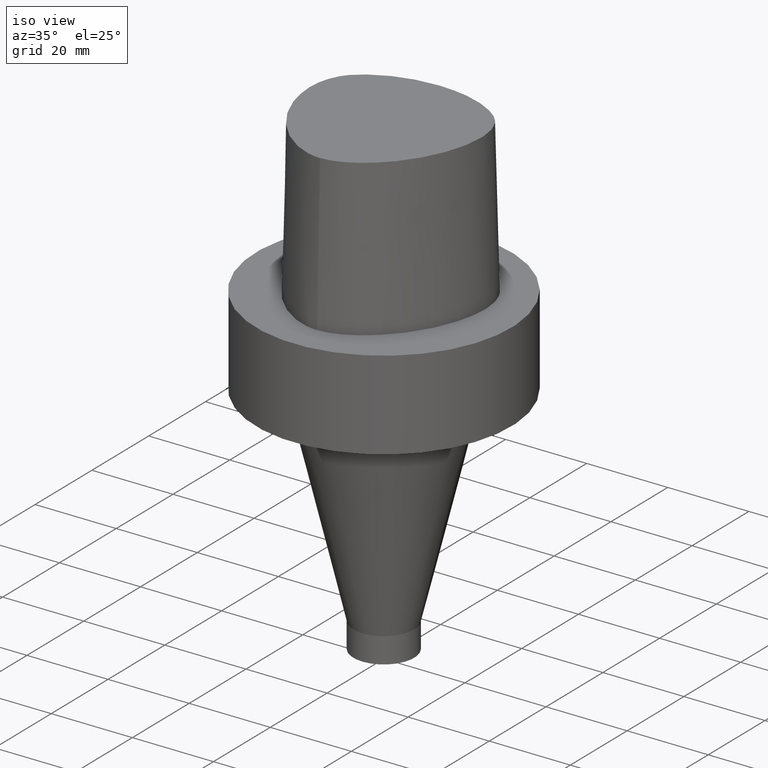
[diagram: clean part render]
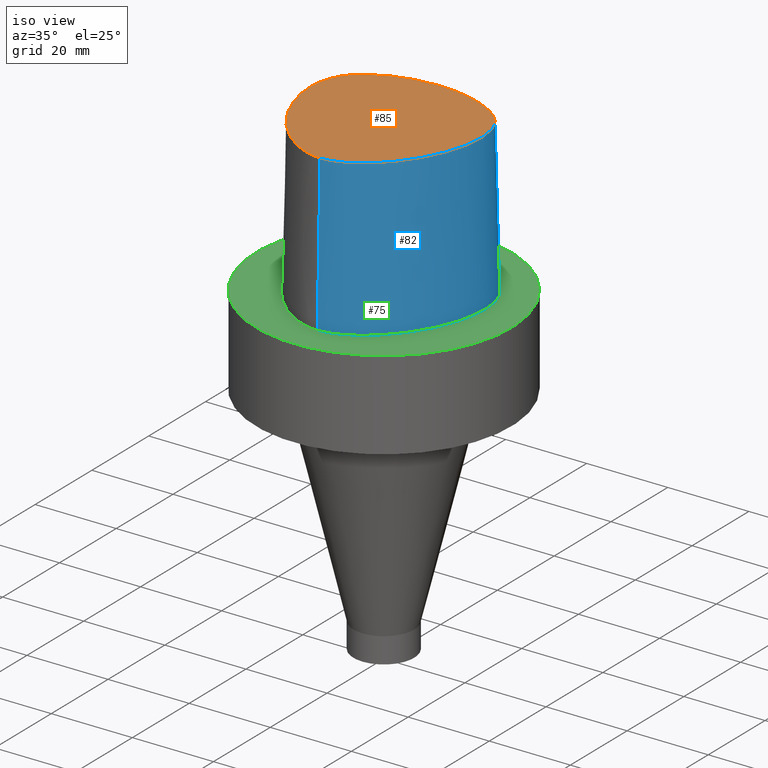
[diagram: same view with three faces highlighted in distinct colors, each labeled with its STEP entity id]
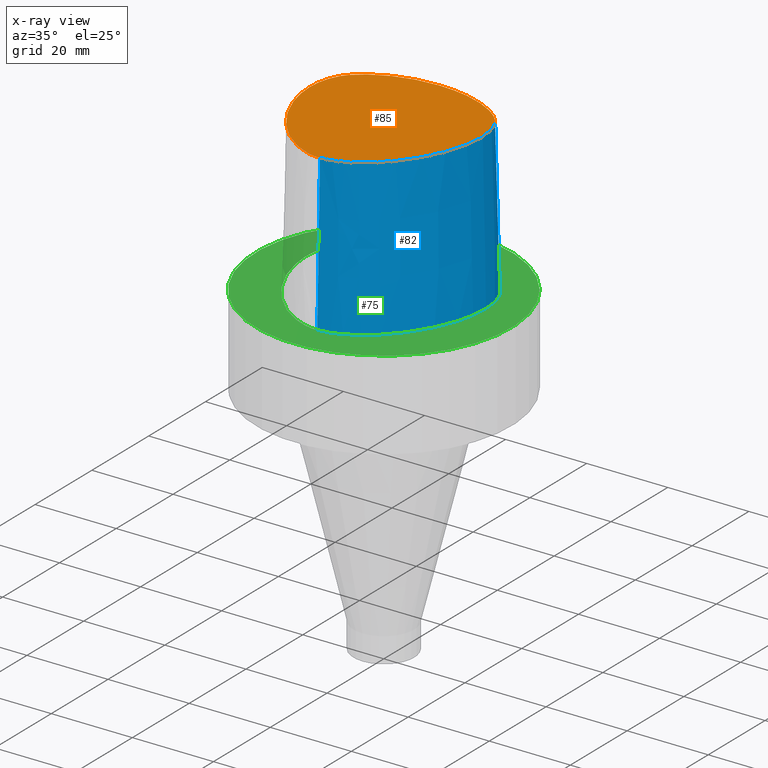
[diagram: x-ray of the same camera — body ghosted, the three highlighted faces saturated]
A machine part, iso view with three faces highlighted in distinct colors.
The next image is the same camera in x-ray (body ghosted, the three faces saturated) — at least one of them is partly hidden behind the body in this view.
Their STEP definitions:

[orange] entity #85 — the highlighted planar face has unit normal (0, 0, 1).
#85=ADVANCED_FACE('',(#113),#114,.T.);
#113=FACE_OUTER_BOUND('',#279,.T.);
#114=PLANE('',#280);
#279=EDGE_LOOP('',(#331,#332));
#280=AXIS2_PLACEMENT_3D('',#333,#334,#335);
#331=ORIENTED_EDGE('',*,*,#348,.T.);
#332=ORIENTED_EDGE('',*,*,#346,.T.);
#333=CARTESIAN_POINT('',(0.008647668684817,1.77491953635526,38.0));
#334=DIRECTION('',(0.0,0.0,1.0));
#335=DIRECTION('',(1.0,-0.0,0.0));
#346=EDGE_CURVE('',#370,#368,#371,.T.);
#348=EDGE_CURVE('',#368,#370,#373,.T.);
#368=VERTEX_POINT('',#453);
#370=VERTEX_POINT('',#456);
#371=B_SPLINE_CURVE_WITH_KNOTS('',3,(#457,#458,#459,#460,#461,#462,#463,#464,#465,#466,#467,#468,#469,#470,#471,#472),.UNSPECIFIED.,.F.,.F.,(4,1,1,1,1,1,1,1,1,1,1,1,1,4),(6.61513393087476,6.99917207152274,7.48193246986995,7.96289324787093,8.45540287038584,9.10291653679981,9.67129810936083,10.1618749681153,10.6358867802489,11.1080734988593,11.6043706019633,12.09451993853,12.6985979284494,13.2302678617486),.UNSPECIFIED.);
#373=B_SPLINE_CURVE_WITH_KNOTS('',3,(#475,#476,#477,#478,#479,#480,#481,#482,#483,#484,#485,#486,#487,#488,#489,#490),.UNSPECIFIED.,.F.,.F.,(4,1,1,1,1,1,1,1,1,1,1,1,1,4),(0.0,0.447924670568964,0.9388024242536,1.50591409090711,2.07314340012323,2.72424957442464,3.2253501842849,3.80982102049476,4.34867996267067,4.85900173381144,5.37972031856977,6.03459825488646,6.61113557741484,6.61513393087395),.UNSPECIFIED.);
#453=CARTESIAN_POINT('',(-0.001218547003662,19.7276821925089,38.0));
#456=CARTESIAN_POINT('',(0.038736923393866,-22.5191997536361,38.0));
#457=CARTESIAN_POINT('',(0.038736923394311,-22.519199753636,38.0));
#458=CARTESIAN_POINT('',(1.31742058183662,-22.512662269405,38.0));
#459=CARTESIAN_POINT('',(4.2093773447498,-21.9116226439989,38.0));
#460=CARTESIAN_POINT('',(8.20895504542113,-19.7798683845067,38.0));
#461=CARTESIAN_POINT('',(11.9784633234593,-16.681663904162,38.0));
#462=CARTESIAN_POINT('',(15.5308821579362,-12.5807487594113,38.0));
#463=CARTESIAN_POINT('',(18.4566248438667,-7.64932246015528,38.0));
#464=CARTESIAN_POINT('',(20.4036090752029,-2.27012499825289,38.0));
#465=CARTESIAN_POINT('',(21.2357187429189,2.79891401173156,38.0));
#466=CARTESIAN_POINT('',(21.0811206267748,7.62543090736657,38.0));
#467=CARTESIAN_POINT('',(19.3383577336563,12.2772250726194,38.0));
#468=CARTESIAN_POINT('',(15.5796322014404,15.5799672120682,38.0));
#469=CARTESIAN_POINT('',(10.8392956074438,17.9834601687347,38.0));
#470=CARTESIAN_POINT('',(5.56068045850571,19.4586143858472,38.0));
#471=CARTESIAN_POINT('',(1.77223893711014,19.6418877095654,38.0));
#472=CARTESIAN_POINT('',(-0.001218367817519,19.7276822012873,38.0));
#475=CARTESIAN_POINT('',(-0.001218547003662,19.7276821925089,38.0));
#476=CARTESIAN_POINT('',(-1.49408492138443,19.6585333605309,38.0));
#477=CARTESIAN_POINT('',(-4.62297391420352,19.513604770166,38.0));
#478=CARTESIAN_POINT('',(-9.56160616752212,18.4291575730197,38.0));
#479=CARTESIAN_POINT('',(-14.5427684976927,16.2697452580488,38.0));
#480=CARTESIAN_POINT('',(-19.4315563551602,12.5302108980807,38.0));
#481=CARTESIAN_POINT('',(-21.306358833612,6.76352894547076,38.0));
#482=CARTESIAN_POINT('',(-21.0724946936277,0.957075236984038,38.0));
#483=CARTESIAN_POINT('',(-19.7876470880144,-4.34628503581652,38.0));
#484=CARTESIAN_POINT('',(-17.5396999600095,-9.33314444653089,38.0));
#485=CARTESIAN_POINT('',(-14.645447733857,-13.7185760345629,38.0));
#486=CARTESIAN_POINT('',(-10.7996726536643,-17.856257282137,38.0));
#487=CARTESIAN_POINT('',(-6.00479510196376,-21.2687382067675,38.0));
#488=CARTESIAN_POINT('',(-1.90747171908525,-22.5250621415864,38.0));
#489=CARTESIAN_POINT('',(0.025424107066464,-22.5192678176378,38.0));
#490=CARTESIAN_POINT('',(0.038736923394311,-22.519199753636,38.0));

[blue] entity #82 — the highlighted face is a freeform B-spline surface patch.
#82=ADVANCED_FACE('',(#107),#108,.T.);
#107=FACE_OUTER_BOUND('',#135,.T.);
#108=B_SPLINE_SURFACE_WITH_KNOTS('',3,3,((#136,#137,#138,#139),(#140,#141,#142,#143),(#144,#145,#146,#147),(#148,#149,#150,#151),(#152,#153,#154,#155),(#156,#157,#158,#159),(#160,#161,#162,#163),(#164,#165,#166,#167),(#168,#169,#170,#171),(#172,#173,#174,#175),(#176,#177,#178,#179),(#180,#181,#182,#183),(#184,#185,#186,#187),(#188,#189,#190,#191),(#192,#193,#194,#195),(#196,#197,#198,#199),(#200,#201,#202,#203)),.UNSPECIFIED.,.F.,.F.,.F.,(4,1,1,1,1,1,1,1,1,1,1,1,1,1,4),(4,4),(-13.2302678617486,-12.816821991069,-12.4033761203893,-11.9899302497097,-11.57648437903,-11.1630385083504,-10.9563155730106,-10.7495926376707,-10.3361467669911,-9.92270089631145,-9.09580915495216,-8.26891741359287,-7.44202567223358,-7.02857980155394,-6.6151339308743),(-3.8,0.0),.UNSPECIFIED.);
#135=EDGE_LOOP('',(#317,#318,#319,#320));
#136=CARTESIAN_POINT('',(-0.001218367817519,19.7276822012873,38.0));
#137=CARTESIAN_POINT('',(0.014082083248157,20.0439577123075,25.3333333333066));
#138=CARTESIAN_POINT('',(0.029382534313671,20.3602332232908,12.6666666666934));
#139=CARTESIAN_POINT('',(0.044682985379347,20.6765087343109,0.0));
#140=CARTESIAN_POINT('',(1.37788651195108,19.6609652834875,38.0));
#141=CARTESIAN_POINT('',(1.3931885827258,19.9772407169847,25.3333333333066));
#142=CARTESIAN_POINT('',(1.40849065356095,20.2935162254648,12.6666666666934));
#143=CARTESIAN_POINT('',(1.42379272427753,20.6097915814392,0.0));
#144=CARTESIAN_POINT('',(4.135446440878,19.5347778787784,38.0));
#145=CARTESIAN_POINT('',(4.16466278851883,19.8511031866125,25.3333333333066));
#146=CARTESIAN_POINT('',(4.1938791526746,20.1674284644204,12.6666666666934));
#147=CARTESIAN_POINT('',(4.2230955003445,20.4837538303966,0.0));
#148=CARTESIAN_POINT('',(8.213607363795,18.7706026638736,38.0));
#149=CARTESIAN_POINT('',(8.29980745008421,19.0767495109635,25.3333333333066));
#150=CARTESIAN_POINT('',(8.38600751285747,19.3828964329996,12.6666666666934));
#151=CARTESIAN_POINT('',(8.47220762821777,19.6890432607088,0.0));
#152=CARTESIAN_POINT('',(12.1316338645671,17.3698624840857,38.0));
#153=CARTESIAN_POINT('',(12.2591308270381,17.6610739397708,25.3333333333066));
#154=CARTESIAN_POINT('',(12.3866278083543,17.9522853923553,12.6666666666934));
#155=CARTESIAN_POINT('',(12.5141247708253,18.2434968480404,0.0));
#156=CARTESIAN_POINT('',(15.7706546153679,15.3789501349612,38.0));
#157=CARTESIAN_POINT('',(15.9483905900895,15.6437731794811,25.3333333333066));
#158=CARTESIAN_POINT('',(16.1261265513272,15.9085961736944,12.6666666666934));
#159=CARTESIAN_POINT('',(16.3038624872874,16.1734192182143,0.0));
#160=CARTESIAN_POINT('',(18.4265894256284,13.0570022172893,38.0));
#161=CARTESIAN_POINT('',(18.6659567517146,13.2725589420689,25.3333333333066));
#162=CARTESIAN_POINT('',(18.9053240921419,13.4881156488541,12.6666666666934));
#163=CARTESIAN_POINT('',(19.1446913988473,13.7036723639434,0.0));
#164=CARTESIAN_POINT('',(19.8679958653038,10.6923771981998,38.0));
#165=CARTESIAN_POINT('',(20.1559937048299,10.8287388264873,25.3333333333066));
#166=CARTESIAN_POINT('',(20.4439915656177,10.965100461641,12.6666666666934));
#167=CARTESIAN_POINT('',(20.7319894342149,11.1014620996188,0.0));
#168=CARTESIAN_POINT('',(20.8470867582337,8.07149548576131,38.0));
#169=CARTESIAN_POINT('',(21.1591164072431,8.14132775555392,25.3333333333066));
#170=CARTESIAN_POINT('',(21.4711459821861,8.21116003697855,12.6666666666934));
#171=CARTESIAN_POINT('',(21.7831756505763,8.28099229708081,0.0));
#172=CARTESIAN_POINT('',(21.2693244256982,4.61157245650171,38.0));
#173=CARTESIAN_POINT('',(21.5881576801997,4.6105997689982,25.3333333333066));
#174=CARTESIAN_POINT('',(21.9069908544037,4.60962709346857,12.6666666666934));
#175=CARTESIAN_POINT('',(22.2258240701438,4.60865440596506,0.0));
#176=CARTESIAN_POINT('',(20.8071610855575,-0.912828649855193,38.0));
#177=CARTESIAN_POINT('',(21.119311671178,-0.979640884839481,25.3333333333066));
#178=CARTESIAN_POINT('',(21.4314624224461,-1.04645306732201,12.6666666666934));
#179=CARTESIAN_POINT('',(21.7436130080666,-1.11326526354485,0.0));
#180=CARTESIAN_POINT('',(18.6841935581315,-7.54428794252837,38.0));
#181=CARTESIAN_POINT('',(18.9734452551861,-7.6809665891091,25.3333333333066));
#182=CARTESIAN_POINT('',(19.2626970689956,-7.81764505382656,12.6666666666934));
#183=CARTESIAN_POINT('',(19.5519487660502,-7.95432366164584,0.0));
#184=CARTESIAN_POINT('',(14.2175552814,-14.5971504342323,38.0));
#185=CARTESIAN_POINT('',(14.4641757465198,-14.8010930946929,25.3333333333066));
#186=CARTESIAN_POINT('',(14.710796247264,-15.0050359737917,12.6666666666934));
#187=CARTESIAN_POINT('',(14.9574167123838,-15.2089785567293,0.0));
#188=CARTESIAN_POINT('',(9.0844808732933,-19.3179298129689,38.0));
#189=CARTESIAN_POINT('',(9.27912152349017,-19.572866915557,25.3333333333066));
#190=CARTESIAN_POINT('',(9.47376218971294,-19.827804295621,12.6666666666934));
#191=CARTESIAN_POINT('',(9.66840283021945,-20.0827414369705,0.0));
#192=CARTESIAN_POINT('',(4.17112919194182,-21.8987568152736,38.0));
#193=CARTESIAN_POINT('',(4.28618163483998,-22.1973837173649,25.3333333333066));
#194=CARTESIAN_POINT('',(4.40123406239433,-22.4960105163661,12.6666666666934));
#195=CARTESIAN_POINT('',(4.51628650521788,-22.7946374572188,0.0));
#196=CARTESIAN_POINT('',(1.41533654381097,-22.5120888467812,38.0));
#197=CARTESIAN_POINT('',(1.46311520162011,-22.8284916374445,25.3333333333066));
#198=CARTESIAN_POINT('',(1.51089385942236,-23.144894486341,12.6666666666934));
#199=CARTESIAN_POINT('',(1.55867251738073,-23.4612972770043,0.0));
#200=CARTESIAN_POINT('',(0.038736923393866,-22.5191997536361,38.0));
#201=CARTESIAN_POINT('',(0.04035580478973,-22.8358410047159,25.3333333333066));
#202=CARTESIAN_POINT('',(0.041974686185626,-23.1524822558133,12.6666666666934));
#203=CARTESIAN_POINT('',(0.04359356758149,-23.4691235068931,0.0));
#317=ORIENTED_EDGE('',*,*,#337,.T.);
#318=ORIENTED_EDGE('',*,*,#345,.F.);
#319=ORIENTED_EDGE('',*,*,#346,.F.);
#320=ORIENTED_EDGE('',*,*,#347,.T.);
#337=EDGE_CURVE('',#352,#353,#354,.T.);
#345=EDGE_CURVE('',#368,#353,#369,.T.);
#346=EDGE_CURVE('',#370,#368,#371,.T.);
#347=EDGE_CURVE('',#370,#352,#372,.T.);
#352=VERTEX_POINT('',#377);
#353=VERTEX_POINT('',#378);
#354=B_SPLINE_CURVE_WITH_KNOTS('',3,(#379,#380,#381,#382,#383,#384,#385,#386,#387,#388,#389,#390,#391,#392,#393,#394,#395,#396,#397,#398,#399,#400,#401,#402,#403,#404,#405,#406,#407,#408,#409,#410),.UNSPECIFIED.,.F.,.F.,(4,2,2,2,2,2,2,2,2,2,2,2,2,2,2,4),(6.6151339308743,6.90353802293409,7.19194211499389,7.48034620705369,7.76875029911348,8.3273781966476,8.88600609418171,10.0632582234986,10.5220146921826,10.9807711608666,11.2101493952086,11.4395276295506,11.8982840982346,12.4281394376607,12.8292036497046,13.2302678617486),.UNSPECIFIED.);
#368=VERTEX_POINT('',#453);
#369=LINE('',#454,#455);
#370=VERTEX_POINT('',#456);
#371=B_SPLINE_CURVE_WITH_KNOTS('',3,(#457,#458,#459,#460,#461,#462,#463,#464,#465,#466,#467,#468,#469,#470,#471,#472),.UNSPECIFIED.,.F.,.F.,(4,1,1,1,1,1,1,1,1,1,1,1,1,4),(6.61513393087476,6.99917207152274,7.48193246986995,7.96289324787093,8.45540287038584,9.10291653679981,9.67129810936083,10.1618749681153,10.6358867802489,11.1080734988593,11.6043706019633,12.09451993853,12.6985979284494,13.2302678617486),.UNSPECIFIED.);
#372=LINE('',#473,#474);
#377=CARTESIAN_POINT('',(0.04359356758149,-23.4691235068931,0.0));
#378=CARTESIAN_POINT('',(0.044682985379347,20.6765087343109,0.0));
#379=CARTESIAN_POINT('',(0.04359356758149,-23.4691235068931,0.0));
#380=CARTESIAN_POINT('',(1.1004598519742,-23.4637201011149,7.105427E-015));
#381=CARTESIAN_POINT('',(2.14400887535539,-23.2973076591387,0.0));
#382=CARTESIAN_POINT('',(4.1424681795584,-22.7592077909815,0.0));
#383=CARTESIAN_POINT('',(5.09815205870591,-22.390397570418,-7.105427E-015));
#384=CARTESIAN_POINT('',(6.9351099930747,-21.5078613163183,-7.105427E-015));
#385=CARTESIAN_POINT('',(7.80351845767777,-20.9996631554928,-7.105427E-015));
#386=CARTESIAN_POINT('',(9.46943987011575,-19.8886274331692,-7.105427E-015));
#387=CARTESIAN_POINT('',(10.2666299015956,-19.2853057570752,-7.105427E-015));
#388=CARTESIAN_POINT('',(12.5026318141948,-17.3963733278614,2.131628E-014));
#389=CARTESIAN_POINT('',(13.8422909676271,-16.0046937991299,0.0));
#390=CARTESIAN_POINT('',(16.2509822407142,-13.0101546997628,1.421085E-014));
#391=CARTESIAN_POINT('',(17.3206577927156,-11.4078127381174,-7.105427E-015));
#392=CARTESIAN_POINT('',(20.1948648257688,-6.17855164445771,-7.105427E-015));
#393=CARTESIAN_POINT('',(21.5264998810762,-2.27044916431131,-7.105427E-015));
#394=CARTESIAN_POINT('',(22.1083077940609,3.36511341978747,-7.105427E-015));
#395=CARTESIAN_POINT('',(22.1437891560423,4.95691742010578,-7.105427E-015));
#396=CARTESIAN_POINT('',(21.7438554055,8.21486313336421,-7.105427E-015));
#397=CARTESIAN_POINT('',(21.2813238062713,9.87761881981491,0.0));
#398=CARTESIAN_POINT('',(20.1794569882097,12.0317423962685,0.0));
#399=CARTESIAN_POINT('',(19.7024138468366,12.7593191234763,-7.105427E-015));
#400=CARTESIAN_POINT('',(18.6262164065722,14.0443851003557,-7.105427E-015));
#401=CARTESIAN_POINT('',(18.0388107856225,14.6116679410871,0.0));
#402=CARTESIAN_POINT('',(16.1284788612342,16.197117807416,7.105427E-015));
#403=CARTESIAN_POINT('',(14.7618818860482,17.03003182658,0.0));
#404=CARTESIAN_POINT('',(11.6856166176821,18.5458506425855,0.0));
#405=CARTESIAN_POINT('',(9.96274972961394,19.1800623227596,0.0));
#406=CARTESIAN_POINT('',(6.84723700488339,20.0025241142556,0.0));
#407=CARTESIAN_POINT('',(5.4719505740624,20.2496312304465,0.0));
#408=CARTESIAN_POINT('',(2.7387517037224,20.5467807312008,0.0));
#409=CARTESIAN_POINT('',(1.38248716057628,20.6117898211938,0.0));
#410=CARTESIAN_POINT('',(0.044682985379347,20.6765087343109,0.0));
#453=CARTESIAN_POINT('',(-0.001218547003662,19.7276821925089,38.0));
#454=CARTESIAN_POINT('',(-0.001218547003662,19.7276821925089,38.0));
#455=VECTOR('',#514,38.0118715503078);
#456=CARTESIAN_POINT('',(0.038736923393866,-22.5191997536361,38.0));
#457=CARTESIAN_POINT('',(0.038736923394311,-22.519199753636,38.0));
#458=CARTESIAN_POINT('',(1.31742058183662,-22.512662269405,38.0));
#459=CARTESIAN_POINT('',(4.2093773447498,-21.9116226439989,38.0));
#460=CARTESIAN_POINT('',(8.20895504542113,-19.7798683845067,38.0));
#461=CARTESIAN_POINT('',(11.9784633234593,-16.681663904162,38.0));
#462=CARTESIAN_POINT('',(15.5308821579362,-12.5807487594113,38.0));
#463=CARTESIAN_POINT('',(18.4566248438667,-7.64932246015528,38.0));
#464=CARTESIAN_POINT('',(20.4036090752029,-2.27012499825289,38.0));
#465=CARTESIAN_POINT('',(21.2357187429189,2.79891401173156,38.0));
#466=CARTESIAN_POINT('',(21.0811206267748,7.62543090736657,38.0));
#467=CARTESIAN_POINT('',(19.3383577336563,12.2772250726194,38.0));
#468=CARTESIAN_POINT('',(15.5796322014404,15.5799672120682,38.0));
#469=CARTESIAN_POINT('',(10.8392956074438,17.9834601687347,38.0));
#470=CARTESIAN_POINT('',(5.56068045850571,19.4586143858472,38.0));
#471=CARTESIAN_POINT('',(1.77223893711014,19.6418877095654,38.0));
#472=CARTESIAN_POINT('',(-0.001218367817519,19.7276822012873,38.0));
#473=CARTESIAN_POINT('',(0.038736923393866,-22.5191997536361,38.0));
#474=VECTOR('',#515,38.0118715498723);
#514=DIRECTION('',(0.001207557810519,0.024961321374199,-0.999687688350411));
#515=DIRECTION('',(0.000127766510556,-0.024990186342461,-0.999687688361864));

[green] entity #75 — the highlighted planar face has unit normal (-0, -0, 1).
#75=ADVANCED_FACE('',(#87,#88),#89,.T.);
#87=FACE_OUTER_BOUND('',#115,.T.);
#88=FACE_BOUND('',#116,.T.);
#89=PLANE('',#117);
#115=EDGE_LOOP('',(#281));
#116=EDGE_LOOP('',(#282,#283,#284));
#117=AXIS2_PLACEMENT_3D('',#285,#286,#287);
#281=ORIENTED_EDGE('',*,*,#336,.F.);
#282=ORIENTED_EDGE('',*,*,#337,.F.);
#283=ORIENTED_EDGE('',*,*,#338,.F.);
#284=ORIENTED_EDGE('',*,*,#339,.F.);
#285=CARTESIAN_POINT('',(-1.94087516075568E-031,15.74625,1.9283594661074E-015));
#286=DIRECTION('',(-6.12323399573677E-017,-1.22464679914735E-016,1.0));
#287=DIRECTION('',(1.23259516440783E-032,-1.0,-1.22464679914735E-016));
#336=EDGE_CURVE('',#350,#350,#351,.T.);
#337=EDGE_CURVE('',#352,#353,#354,.T.);
#338=EDGE_CURVE('',#355,#352,#356,.T.);
#339=EDGE_CURVE('',#353,#355,#357,.T.);
#350=VERTEX_POINT('',#375);
#351=CIRCLE('',#376,31.4925);
#352=VERTEX_POINT('',#377);
#353=VERTEX_POINT('',#378);
#354=B_SPLINE_CURVE_WITH_KNOTS('',3,(#379,#380,#381,#382,#383,#384,#385,#386,#387,#388,#389,#390,#391,#392,#393,#394,#395,#396,#397,#398,#399,#400,#401,#402,#403,#404,#405,#406,#407,#408,#409,#410),.UNSPECIFIED.,.F.,.F.,(4,2,2,2,2,2,2,2,2,2,2,2,2,2,2,4),(6.6151339308743,6.90353802293409,7.19194211499389,7.48034620705369,7.76875029911348,8.3273781966476,8.88600609418171,10.0632582234986,10.5220146921826,10.9807711608666,11.2101493952086,11.4395276295506,11.8982840982346,12.4281394376607,12.8292036497046,13.2302678617486),.UNSPECIFIED.);
#355=VERTEX_POINT('',#411);
#356=B_SPLINE_CURVE_WITH_KNOTS('',3,(#412,#413,#414,#415,#416,#417,#418,#419,#420,#421,#422,#423,#424,#425,#426,#427,#428,#429,#430,#431,#432,#433,#434,#435,#436,#437,#438,#439,#440,#441),.UNSPECIFIED.,.F.,.F.,(4,2,2,2,2,2,2,2,2,2,2,2,2,2,4),(0.0,0.576808184119594,1.15361636823919,1.43293031700624,1.7122442657733,1.99155821454036,2.27087216330741,2.85949822796588,3.15381126029511,3.44812429262434,4.36563722999232,5.28315016736029,5.8130055067864,6.21406971883035,6.6151339308743),.UNSPECIFIED.);
#357=CIRCLE('',#442,0.949936168379101);
#375=CARTESIAN_POINT('',(-3.88175032151136E-031,31.4925,3.8567189322148E-015));
#376=AXIS2_PLACEMENT_3D('',#493,#494,#495);
#377=CARTESIAN_POINT('',(0.04359356758149,-23.4691235068931,0.0));
#378=CARTESIAN_POINT('',(0.044682985379347,20.6765087343109,0.0));
#379=CARTESIAN_POINT('',(0.04359356758149,-23.4691235068931,0.0));
#380=CARTESIAN_POINT('',(1.1004598519742,-23.4637201011149,7.105427E-015));
#381=CARTESIAN_POINT('',(2.14400887535539,-23.2973076591387,0.0));
#382=CARTESIAN_POINT('',(4.1424681795584,-22.7592077909815,0.0));
#383=CARTESIAN_POINT('',(5.09815205870591,-22.390397570418,-7.105427E-015));
#384=CARTESIAN_POINT('',(6.9351099930747,-21.5078613163183,-7.105427E-015));
#385=CARTESIAN_POINT('',(7.80351845767777,-20.9996631554928,-7.105427E-015));
#386=CARTESIAN_POINT('',(9.46943987011575,-19.8886274331692,-7.105427E-015));
#387=CARTESIAN_POINT('',(10.2666299015956,-19.2853057570752,-7.105427E-015));
#388=CARTESIAN_POINT('',(12.5026318141948,-17.3963733278614,2.131628E-014));
#389=CARTESIAN_POINT('',(13.8422909676271,-16.0046937991299,0.0));
#390=CARTESIAN_POINT('',(16.2509822407142,-13.0101546997628,1.421085E-014));
#391=CARTESIAN_POINT('',(17.3206577927156,-11.4078127381174,-7.105427E-015));
#392=CARTESIAN_POINT('',(20.1948648257688,-6.17855164445771,-7.105427E-015));
#393=CARTESIAN_POINT('',(21.5264998810762,-2.27044916431131,-7.105427E-015));
#394=CARTESIAN_POINT('',(22.1083077940609,3.36511341978747,-7.105427E-015));
#395=CARTESIAN_POINT('',(22.1437891560423,4.95691742010578,-7.105427E-015));
#396=CARTESIAN_POINT('',(21.7438554055,8.21486313336421,-7.105427E-015));
#397=CARTESIAN_POINT('',(21.2813238062713,9.87761881981491,0.0));
#398=CARTESIAN_POINT('',(20.1794569882097,12.0317423962685,0.0));
#399=CARTESIAN_POINT('',(19.7024138468366,12.7593191234763,-7.105427E-015));
#400=CARTESIAN_POINT('',(18.6262164065722,14.0443851003557,-7.105427E-015));
#401=CARTESIAN_POINT('',(18.0388107856225,14.6116679410871,0.0));
#402=CARTESIAN_POINT('',(16.1284788612342,16.197117807416,7.105427E-015));
#403=CARTESIAN_POINT('',(14.7618818860482,17.03003182658,0.0));
#404=CARTESIAN_POINT('',(11.6856166176821,18.5458506425855,0.0));
#405=CARTESIAN_POINT('',(9.96274972961394,19.1800623227596,0.0));
#406=CARTESIAN_POINT('',(6.84723700488339,20.0025241142556,0.0));
#407=CARTESIAN_POINT('',(5.4719505740624,20.2496312304465,0.0));
#408=CARTESIAN_POINT('',(2.7387517037224,20.5467807312008,0.0));
#409=CARTESIAN_POINT('',(1.38248716057628,20.6117898211938,0.0));
#410=CARTESIAN_POINT('',(0.044682985379347,20.6765087343109,0.0));
#411=CARTESIAN_POINT('',(-0.045171994691285,20.6766009553285,0.0));
#412=CARTESIAN_POINT('',(-0.045171994691285,20.6766009553285,0.0));
#413=CARTESIAN_POINT('',(-1.96758797023018,20.5875555983123,0.0));
#414=CARTESIAN_POINT('',(-3.95342611673668,20.4850284912479,-1.421085E-014));
#415=CARTESIAN_POINT('',(-7.86342529995983,19.7967909190733,7.105427E-015));
#416=CARTESIAN_POINT('',(-9.79439573378639,19.2503426360022,-1.421085E-014));
#417=CARTESIAN_POINT('',(-12.5351742003408,18.1332577991903,0.0));
#418=CARTESIAN_POINT('',(-13.4106560097683,17.7191970550452,0.0));
#419=CARTESIAN_POINT('',(-15.1227536857037,16.7802221286297,7.105427E-015));
#420=CARTESIAN_POINT('',(-15.9615364355591,16.2592643918937,0.0));
#421=CARTESIAN_POINT('',(-17.5597683566648,15.0665385774434,0.0));
#422=CARTESIAN_POINT('',(-18.3143568572283,14.3955246024635,-7.105427E-015));
#423=CARTESIAN_POINT('',(-19.638502795217,12.8665014798265,-7.105427E-015));
#424=CARTESIAN_POINT('',(-20.1979602542332,11.999774776593,0.0));
#425=CARTESIAN_POINT('',(-21.5622718142072,9.15853750369237,0.0));
#426=CARTESIAN_POINT('',(-21.9947483544612,7.02185767378744,0.0));
#427=CARTESIAN_POINT('',(-22.1134563193034,3.90325125553384,0.0));
#428=CARTESIAN_POINT('',(-22.0668279345839,2.87928778574124,0.0));
#429=CARTESIAN_POINT('',(-21.8551986681238,0.853042087412899,0.0));
#430=CARTESIAN_POINT('',(-21.6926789478513,-0.149498515836233,-1.421085E-014));
#431=CARTESIAN_POINT('',(-20.816421377794,-4.23736740865811,1.421085E-014));
#432=CARTESIAN_POINT('',(-19.659579746308,-7.20863943907163,-1.421085E-014));
#433=CARTESIAN_POINT('',(-16.574666895304,-12.7137973313948,0.0));
#434=CARTESIAN_POINT('',(-14.6473715787034,-15.2481179483411,-7.105427E-015));
#435=CARTESIAN_POINT('',(-11.050022952355,-18.7018400427945,7.105427E-015));
#436=CARTESIAN_POINT('',(-9.61826302632357,-19.8571497088389,0.0));
#437=CARTESIAN_POINT('',(-6.85491632421896,-21.5712784212,-1.421085E-014));
#438=CARTESIAN_POINT('',(-5.58035985461548,-22.2135461215161,0.0));
#439=CARTESIAN_POINT('',(-2.86743329636734,-23.1704091567902,0.0));
#440=CARTESIAN_POINT('',(-1.42611943322398,-23.4766376606116,0.0));
#441=CARTESIAN_POINT('',(0.04359356758149,-23.4691235068931,0.0));
#442=AXIS2_PLACEMENT_3D('',#496,#497,#498);
#493=CARTESIAN_POINT('',(0.0,0.0,0.0));
#494=DIRECTION('',(6.12323399573677E-017,1.22464679914735E-016,-1.0));
#495=DIRECTION('',(-1.23259516440783E-032,1.0,1.22464679914735E-016));
#496=CARTESIAN_POINT('',(-0.001218547003662,19.7276821925089,0.0));
#497=DIRECTION('',(0.0,0.0,1.0));
#498=DIRECTION('',(-0.046269895968506,0.998928974816059,0.0));